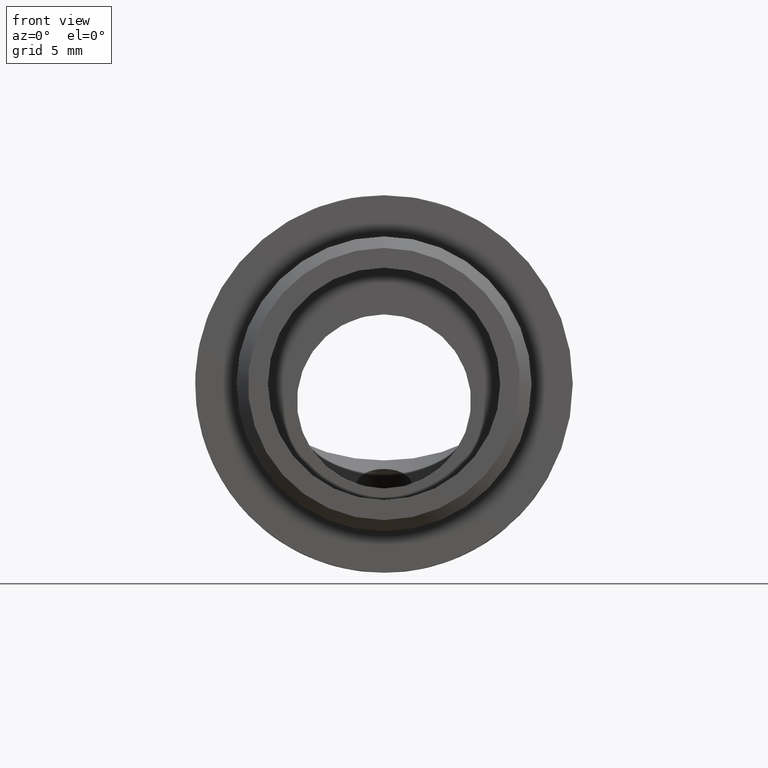
[diagram: clean part render]
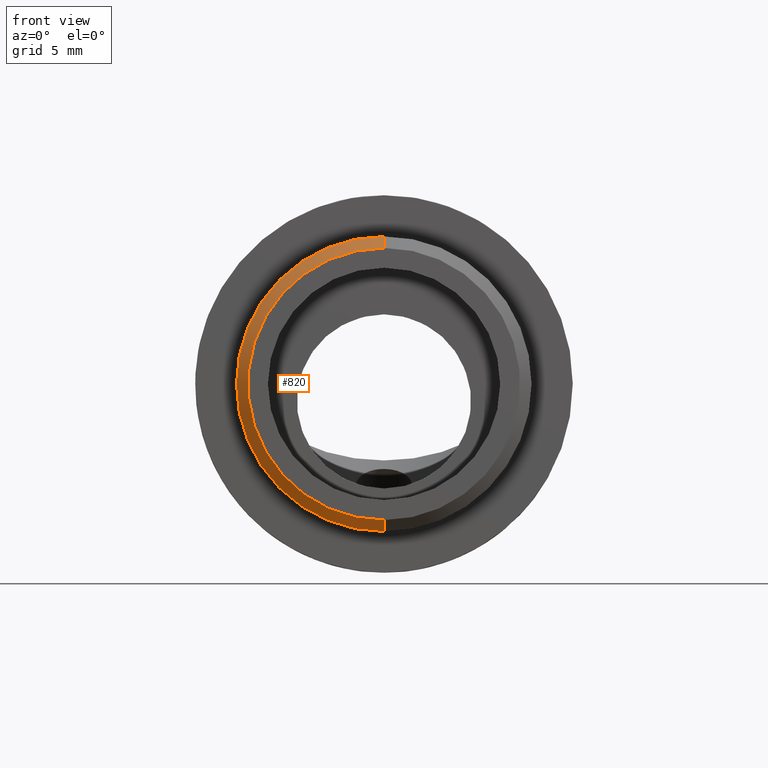
[diagram: same view with one face highlighted and labeled with its STEP entity id]
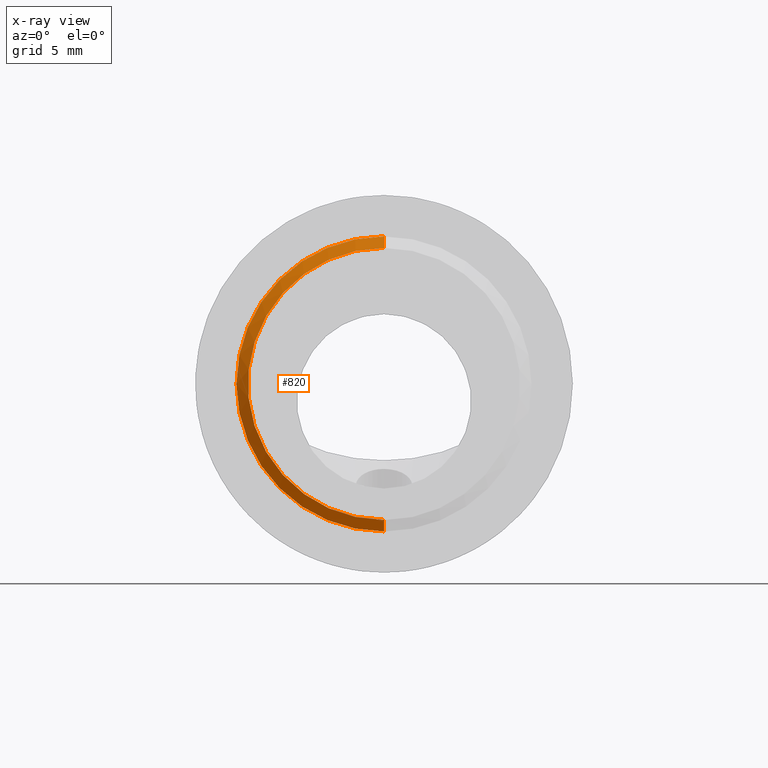
[diagram: x-ray of the same camera — body ghosted, the highlighted face saturated]
A machine part, front view. The second image highlights one B-rep face of the part: STEP entity #820.
The next image is the same camera in x-ray: the body ghosted, the highlighted face saturated — about 0% of this face is hidden behind the body in this view.
In plain terms, the highlighted conical surface has half-angle 45 deg.
Its self-contained STEP definition (entity closure, byte-faithful):
#70 = CIRCLE ( 'NONE', #716, 5.951500000000005564 ) ;
#76 = DIRECTION ( 'NONE',  ( 0.000000000000000000, 0.000000000000000000, -1.000000000000000000 ) ) ;
#85 = ORIENTED_EDGE ( 'NONE', *, *, #271, .F. ) ;
#109 = VERTEX_POINT ( 'NONE', #966 ) ;
#120 = DIRECTION ( 'NONE',  ( 0.000000000000000000, 1.000000000000000000, 0.000000000000000000 ) ) ;
#238 = FACE_OUTER_BOUND ( 'NONE', #801, .T. ) ;
#271 = EDGE_CURVE ( 'NONE', #1418, #542, #356, .T. ) ;
#314 = CARTESIAN_POINT ( 'NONE',  ( 0.000000000000000000, -5.333999999999999631, 5.951500000000005564 ) ) ;
#356 = CIRCLE ( 'NONE', #1322, 6.451500000000001123 ) ;
#380 = CARTESIAN_POINT ( 'NONE',  ( 7.900808824699151628E-16, -4.833999999999997854, -6.451500000000001123 ) ) ;
#388 = CARTESIAN_POINT ( 'NONE',  ( 0.000000000000000000, -5.333999999999999631, 0.000000000000000000 ) ) ;
#409 = CARTESIAN_POINT ( 'NONE',  ( 0.000000000000000000, -4.833999999999997854, 6.451500000000001123 ) ) ;
#418 = AXIS2_PLACEMENT_3D ( 'NONE', #1291, #120, #1684 ) ;
#441 = LINE ( 'NONE', #548, #855 ) ;
#542 = VERTEX_POINT ( 'NONE', #409 ) ;
#548 = CARTESIAN_POINT ( 'NONE',  ( 7.288485425125479831E-16, -5.333999999999999631, -5.951500000000005564 ) ) ;
#568 = ORIENTED_EDGE ( 'NONE', *, *, #873, .F. ) ;
#716 = AXIS2_PLACEMENT_3D ( 'NONE', #388, #1175, #1333 ) ;
#801 = EDGE_LOOP ( 'NONE', ( #817, #568, #1221, #85 ) ) ;
#817 = ORIENTED_EDGE ( 'NONE', *, *, #1248, .F. ) ;
#820 = ADVANCED_FACE ( 'NONE', ( #238 ), #882, .T. ) ;
#855 = VECTOR ( 'NONE', #875, 1000.000000000000000 ) ;
#860 = VERTEX_POINT ( 'NONE', #1340 ) ;
#873 = EDGE_CURVE ( 'NONE', #109, #860, #70, .T. ) ;
#875 = DIRECTION ( 'NONE',  ( 8.659560562354888485E-17, 0.7071067811865512365, -0.7071067811865439090 ) ) ;
#882 = CONICAL_SURFACE ( 'NONE', #418, 5.951500000000005564, 0.7853981633974431720 ) ;
#941 = VECTOR ( 'NONE', #1643, 1000.000000000000000 ) ;
#966 = CARTESIAN_POINT ( 'NONE',  ( 0.000000000000000000, -5.333999999999999631, 5.951500000000005564 ) ) ;
#977 = DIRECTION ( 'NONE',  ( 0.000000000000000000, 1.000000000000000000, 0.000000000000000000 ) ) ;
#1175 = DIRECTION ( 'NONE',  ( 0.000000000000000000, -1.000000000000000000, 0.000000000000000000 ) ) ;
#1216 = EDGE_CURVE ( 'NONE', #109, #542, #1488, .T. ) ;
#1221 = ORIENTED_EDGE ( 'NONE', *, *, #1216, .T. ) ;
#1248 = EDGE_CURVE ( 'NONE', #860, #1418, #441, .T. ) ;
#1291 = CARTESIAN_POINT ( 'NONE',  ( 0.000000000000000000, -5.333999999999999631, 0.000000000000000000 ) ) ;
#1322 = AXIS2_PLACEMENT_3D ( 'NONE', #1484, #977, #76 ) ;
#1333 = DIRECTION ( 'NONE',  ( 0.000000000000000000, 0.000000000000000000, -1.000000000000000000 ) ) ;
#1340 = CARTESIAN_POINT ( 'NONE',  ( 7.594647124912314744E-16, -5.333999999999999631, -5.951500000000005564 ) ) ;
#1418 = VERTEX_POINT ( 'NONE', #380 ) ;
#1484 = CARTESIAN_POINT ( 'NONE',  ( 0.000000000000000000, -4.833999999999997854, 0.000000000000000000 ) ) ;
#1488 = LINE ( 'NONE', #314, #941 ) ;
#1643 = DIRECTION ( 'NONE',  ( 0.000000000000000000, 0.7071067811865512365, 0.7071067811865439090 ) ) ;
#1684 = DIRECTION ( 'NONE',  ( 0.000000000000000000, 0.000000000000000000, 1.000000000000000000 ) ) ;